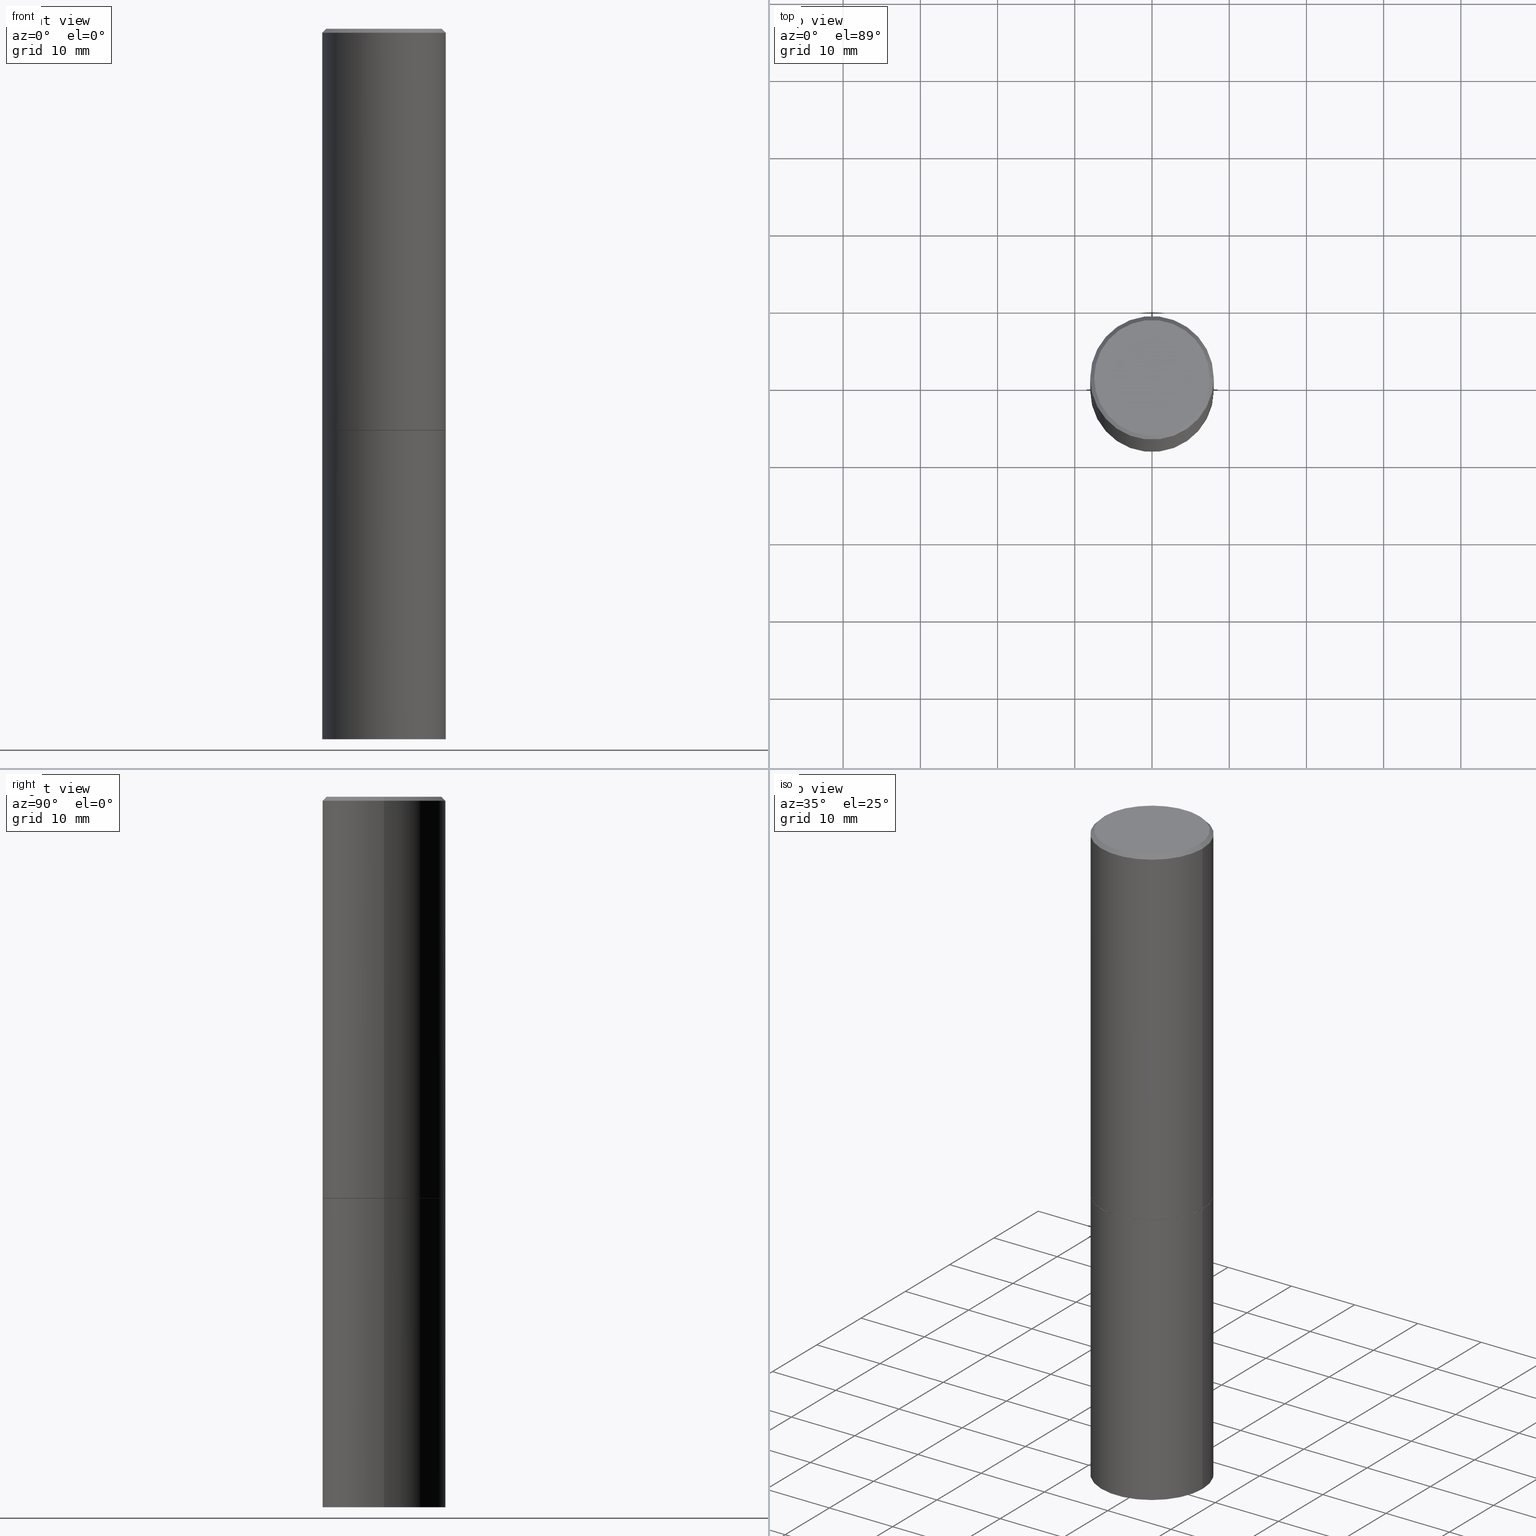
[diagram: canonical four-view strip — front | top / right | iso, engineering-drawing reading convention]
A machine part, canonical four-view strip (front | top / right | iso — engineering-drawing reading convention). The complete STEP part file that produces these views, byte-faithful:
ISO-10303-21;
HEADER;
FILE_DESCRIPTION (( 'STEP AP203' ),
    '1' );
FILE_NAME ('74471.STEP',
    '2024-02-29T11:31:50',
    ( '' ),
    ( '' ),
    'SwSTEP 2.0',
    'SolidWorks 2023',
    '' );
FILE_SCHEMA (( 'CONFIG_CONTROL_DESIGN' ));
ENDSEC;

DATA;
#1 = CALENDAR_DATE ( 2024, 29, 2 ) ;
#2 = ORIENTED_EDGE ( 'NONE', *, *, #180, .F. ) ;
#3 = AXIS2_PLACEMENT_3D ( 'NONE', #177, #235, #37 ) ;
#4 = LOCAL_TIME ( 6, 31, 50.00000000000000000, #281 ) ;
#5 = EDGE_CURVE ( 'NONE', #115, #107, #53, .T. ) ;
#6 = ORIENTED_EDGE ( 'NONE', *, *, #275, .F. ) ;
#7 = PERSON_AND_ORGANIZATION_ROLE ( 'creator' ) ;
#8 = AXIS2_PLACEMENT_3D ( 'NONE', #176, #316, #65 ) ;
#9 =( LENGTH_UNIT ( ) NAMED_UNIT ( * ) SI_UNIT ( $, .METRE. ) );
#10 = CARTESIAN_POINT ( 'NONE',  ( 0.3139500000000000068, -9.340061729539288903E-15, -2.047199999999999243 ) ) ;
#11 = CARTESIAN_POINT ( 'NONE',  ( 0.3149500000000000077, -9.347044692216978073E-15, -2.047199999999999687 ) ) ;
#12 = FACE_OUTER_BOUND ( 'NONE', #21, .T. ) ;
#13 = LOCAL_TIME ( 6, 31, 50.00000000000000000, #16 ) ;
#14 = PRODUCT_DEFINITION ( 'UNKNOWN', '', #203, #205 ) ;
#15 = FACE_OUTER_BOUND ( 'NONE', #45, .T. ) ;
#16 = COORDINATED_UNIVERSAL_TIME_OFFSET ( 5, 0, .BEHIND. ) ;
#17 = ADVANCED_FACE ( 'NONE', ( #297 ), #47, .T. ) ;
#18 = DIRECTION ( 'NONE',  ( 1.000000000000000000, -6.982962677686264344E-15, 0.000000000000000000 ) ) ;
#19 = PLANE ( 'NONE',  #183 ) ;
#20 = AXIS2_PLACEMENT_3D ( 'NONE', #298, #357, #277 ) ;
#21 = EDGE_LOOP ( 'NONE', ( #76, #185, #283, #135 ) ) ;
#22 = DIRECTION ( 'NONE',  ( -2.445468806185136597E-29, 3.491481338843145583E-15, 1.000000000000000000 ) ) ;
#23 = DIRECTION ( 'NONE',  ( 1.000000000000000000, -6.982962677686266711E-15, 4.876176775795936353E-29 ) ) ;
#24 = DIRECTION ( 'NONE',  ( 1.000000000000000000, -6.982962677686266711E-15, 0.000000000000000000 ) ) ;
#25 = AXIS2_PLACEMENT_3D ( 'NONE', #257, #317, #170 ) ;
#26 = EDGE_CURVE ( 'NONE', #213, #107, #346, .T. ) ;
#27 = EDGE_LOOP ( 'NONE', ( #80, #217, #192, #224 ) ) ;
#28 = DIRECTION ( 'NONE',  ( 1.000000000000000000, -6.982962677686267499E-15, 4.876053491004739391E-29 ) ) ;
#29 = ORIENTED_EDGE ( 'NONE', *, *, #299, .T. ) ;
#30 = ORIENTED_EDGE ( 'NONE', *, *, #299, .F. ) ;
#31 = VERTEX_POINT ( 'NONE', #160 ) ;
#32 =( NAMED_UNIT ( * ) PLANE_ANGLE_UNIT ( ) SI_UNIT ( $, .RADIAN. ) );
#33 = EDGE_CURVE ( 'NONE', #198, #199, #300, .T. ) ;
#34 = AXIS2_PLACEMENT_3D ( 'NONE', #273, #22, #24 ) ;
#35 = CARTESIAN_POINT ( 'NONE',  ( 0.000000000000000000, 0.000000000000000000, 0.000000000000000000 ) ) ;
#36 = LINE ( 'NONE', #10, #196 ) ;
#37 = DIRECTION ( 'NONE',  ( 1.000000000000000000, -6.982962677686264344E-15, 0.000000000000000000 ) ) ;
#38 = DIRECTION ( 'NONE',  ( -2.445468806185136597E-29, 3.491481338843145583E-15, 1.000000000000000000 ) ) ;
#39 = APPROVAL_STATUS ( 'not_yet_approved' ) ;
#40 = CARTESIAN_POINT ( 'NONE',  ( -0.3149500000000000077, -1.369195024882416092E-15, -2.046199999999999797 ) ) ;
#41 = AXIS2_PLACEMENT_3D ( 'NONE', #136, #252, #28 ) ;
#42 = AXIS2_PLACEMENT_3D ( 'NONE', #155, #208, #153 ) ;
#43 = ADVANCED_FACE ( 'NONE', ( #108 ), #103, .F. ) ;
#44 = DIRECTION ( 'NONE',  ( 0.000000000000000000, 0.000000000000000000, 1.000000000000000000 ) ) ;
#45 = EDGE_LOOP ( 'NONE', ( #84, #117, #255, #336 ) ) ;
#46 = DIRECTION ( 'NONE',  ( 2.445468806185136597E-29, -3.491481338843145583E-15, -1.000000000000000000 ) ) ;
#47 = CONICAL_SURFACE ( 'NONE', #109, 0.3149499999999997302, 0.7853981633974471688 ) ;
#48 = APPROVAL_STATUS ( 'not_yet_approved' ) ;
#49 = VERTEX_POINT ( 'NONE', #330 ) ;
#50 = CARTESIAN_POINT ( 'NONE',  ( -0.3149500000000000077, 2.237854346276435590E-15, -1.549218606675782676E-29 ) ) ;
#51 = APPLICATION_PROTOCOL_DEFINITION ( 'international standard', 'config_control_design', 1994, #260 ) ;
#52 = ORIENTED_EDGE ( 'NONE', *, *, #92, .F. ) ;
#53 = LINE ( 'NONE', #50, #130 ) ;
#54 = AXIS2_PLACEMENT_3D ( 'NONE', #360, #79, #186 ) ;
#55 = EDGE_LOOP ( 'NONE', ( #226, #111 ) ) ;
#56 = CARTESIAN_POINT ( 'NONE',  ( -0.3149499999999997302, 2.129454468560424601E-15, -0.02000000000000006981 ) ) ;
#57 = COORDINATED_UNIVERSAL_TIME_OFFSET ( 5, 0, .BEHIND. ) ;
#58 = ORIENTED_EDGE ( 'NONE', *, *, #275, .T. ) ;
#59 = ADVANCED_FACE ( 'NONE', ( #279 ), #216, .T. ) ;
#60 = DATE_AND_TIME ( #1, #347 ) ;
#61 = ORIENTED_EDGE ( 'NONE', *, *, #88, .T. ) ;
#62 = PRODUCT_DEFINITION_SHAPE ( 'NONE', 'NONE',  #14 ) ;
#63 = CIRCLE ( 'NONE', #20, 0.3149500000000000077 ) ;
#64 = DATE_TIME_ROLE ( 'creation_date' ) ;
#65 = DIRECTION ( 'NONE',  ( 1.000000000000000000, -6.982962677686263555E-15, 0.000000000000000000 ) ) ;
#66 = ADVANCED_BREP_SHAPE_REPRESENTATION ( '74471', ( #93, #218, #90 ), #99 ) ;
#67 = CARTESIAN_POINT ( 'NONE',  ( 0.3149499999999997302, -2.230543471175005478E-15, -0.02000000000000006981 ) ) ;
#68 =( CONVERSION_BASED_UNIT ( 'INCH', #288 ) LENGTH_UNIT ( ) NAMED_UNIT ( #232 ) );
#69 =( NAMED_UNIT ( * ) SI_UNIT ( $, .STERADIAN. ) SOLID_ANGLE_UNIT ( ) );
#70 = CC_DESIGN_APPROVAL ( #270, ( #356 ) ) ;
#71 = DIRECTION ( 'NONE',  ( -2.445468806185136877E-29, 3.491481338843145188E-15, 1.000000000000000000 ) ) ;
#72 = DIRECTION ( 'NONE',  ( 1.000000000000000000, -6.982962677686269866E-15, 0.000000000000000000 ) ) ;
#73 = EDGE_CURVE ( 'NONE', #339, #198, #63, .T. ) ;
#74 = DIRECTION ( 'NONE',  ( -2.445468806185136597E-29, 3.491481338843145583E-15, 1.000000000000000000 ) ) ;
#75 = DIRECTION ( 'NONE',  ( -2.445468806185136597E-29, 3.491481338843145583E-15, 1.000000000000000000 ) ) ;
#76 = ORIENTED_EDGE ( 'NONE', *, *, #96, .F. ) ;
#77 = AXIS2_PLACEMENT_3D ( 'NONE', #35, #125, #263 ) ;
#78 = CC_DESIGN_PERSON_AND_ORGANIZATION_ASSIGNMENT ( #261, #338, ( #203 ) ) ;
#79 = DIRECTION ( 'NONE',  ( -2.438088387897960049E-29, 3.491481338843145188E-15, 1.000000000000000000 ) ) ;
#80 = ORIENTED_EDGE ( 'NONE', *, *, #179, .T. ) ;
#81 = DIRECTION ( 'NONE',  ( 2.438088387897960049E-29, -3.491481338843145188E-15, -1.000000000000000000 ) ) ;
#82 = ORIENTED_EDGE ( 'NONE', *, *, #73, .F. ) ;
#83 = FACE_OUTER_BOUND ( 'NONE', #27, .T. ) ;
#84 = ORIENTED_EDGE ( 'NONE', *, *, #92, .T. ) ;
#85 = ORIENTED_EDGE ( 'NONE', *, *, #88, .F. ) ;
#86 = SHAPE_DEFINITION_REPRESENTATION ( #62, #66 ) ;
#87 = DATE_AND_TIME ( #227, #363 ) ;
#88 = EDGE_CURVE ( 'NONE', #244, #49, #264, .T. ) ;
#89 = AXIS2_PLACEMENT_3D ( 'NONE', #324, #351, #181 ) ;
#90 = AXIS2_PLACEMENT_3D ( 'NONE', #212, #44, #156 ) ;
#91 = CARTESIAN_POINT ( 'NONE',  ( 0.3149500000000000077, -9.343553210878133488E-15, -2.046199999999999797 ) ) ;
#92 = EDGE_CURVE ( 'NONE', #198, #339, #146, .T. ) ;
#93 = MANIFOLD_SOLID_BREP ( 'Body-Move/Copy2[1]', #322 ) ;
#94 = DIRECTION ( 'NONE',  ( 0.7071067811866199593, -2.468850131083015945E-15, 0.7071067811864750752 ) ) ;
#95 = DIRECTION ( 'NONE',  ( 0.7071067811865466846, -7.319954787623252890E-15, -0.7071067811865483499 ) ) ;
#96 = EDGE_CURVE ( 'NONE', #339, #172, #164, .T. ) ;
#97 = FACE_OUTER_BOUND ( 'NONE', #194, .T. ) ;
#98 = APPLICATION_PROTOCOL_DEFINITION ( 'international standard', 'config_control_design', 1994, #274 ) ;
#99 =( GEOMETRIC_REPRESENTATION_CONTEXT ( 3 ) GLOBAL_UNCERTAINTY_ASSIGNED_CONTEXT ( ( #345 ) ) GLOBAL_UNIT_ASSIGNED_CONTEXT ( ( #68, #32, #69 ) ) REPRESENTATION_CONTEXT ( 'NONE', 'WORKASPACE' ) );
#100 = DIRECTION ( 'NONE',  ( -1.000000000000000000, 6.982962677686266711E-15, 0.000000000000000000 ) ) ;
#101 = AXIS2_PLACEMENT_3D ( 'NONE', #157, #75, #219 ) ;
#102 = EDGE_CURVE ( 'NONE', #172, #199, #225, .T. ) ;
#103 = PLANE ( 'NONE',  #54 ) ;
#104 = ORIENTED_EDGE ( 'NONE', *, *, #174, .F. ) ;
#105 = CARTESIAN_POINT ( 'NONE',  ( 4.890937612370289799E-31, -6.982962677686315028E-17, -0.02000000000000006981 ) ) ;
#106 = APPROVAL ( #39, 'UNSPECIFIED' ) ;
#107 = VERTEX_POINT ( 'NONE', #142 ) ;
#108 = FACE_OUTER_BOUND ( 'NONE', #55, .T. ) ;
#109 = AXIS2_PLACEMENT_3D ( 'NONE', #105, #46, #331 ) ;
#110 = ORGANIZATION ( 'UNSPECIFIED', 'UNSPECIFIED', '' ) ;
#111 = ORIENTED_EDGE ( 'NONE', *, *, #290, .F. ) ;
#112 = EDGE_LOOP ( 'NONE', ( #6, #85, #366, #302 ) ) ;
#113 = CARTESIAN_POINT ( 'NONE',  ( -0.3139500000000000068, -4.917011677960851648E-15, -2.047199999999999243 ) ) ;
#114 = DIRECTION ( 'NONE',  ( -2.445468806185136877E-29, 3.491481338843145188E-15, 1.000000000000000000 ) ) ;
#115 = VERTEX_POINT ( 'NONE', #334 ) ;
#116 = DATE_AND_TIME ( #254, #4 ) ;
#117 = ORIENTED_EDGE ( 'NONE', *, *, #96, .T. ) ;
#118 = AXIS2_PLACEMENT_3D ( 'NONE', #182, #354, #100 ) ;
#119 = COORDINATED_UNIVERSAL_TIME_OFFSET ( 5, 0, .BEHIND. ) ;
#120 = PERSON_AND_ORGANIZATION_ROLE ( 'classification_officer' ) ;
#121 = ADVANCED_FACE ( 'NONE', ( #191 ), #19, .F. ) ;
#122 = CLOSED_SHELL ( 'NONE', ( #140, #240, #320, #17, #350, #127, #43, #326 ) ) ;
#123 = DIRECTION ( 'NONE',  ( -2.445468806185136597E-29, 3.491481338843145583E-15, 1.000000000000000000 ) ) ;
#124 = ADVANCED_FACE ( 'NONE', ( #138 ), #251, .T. ) ;
#125 = DIRECTION ( 'NONE',  ( -2.445468806185136597E-29, 3.491481338843145583E-15, 1.000000000000000000 ) ) ;
#126 = DIRECTION ( 'NONE',  ( -1.000000000000000000, 6.982962677686265922E-15, -4.876176775795935793E-29 ) ) ;
#127 = ADVANCED_FACE ( 'NONE', ( #243 ), #361, .T. ) ;
#128 = PLANE ( 'NONE',  #131 ) ;
#129 = PERSON_AND_ORGANIZATION ( #329, #110 ) ;
#130 = VECTOR ( 'NONE', #114, 39.37007874015748143 ) ;
#131 = AXIS2_PLACEMENT_3D ( 'NONE', #319, #349, #126 ) ;
#132 = DIRECTION ( 'NONE',  ( -1.000000000000000000, 6.982962677686265922E-15, -4.876176775795935793E-29 ) ) ;
#133 = ORIENTED_EDGE ( 'NONE', *, *, #242, .T. ) ;
#134 = CC_DESIGN_PERSON_AND_ORGANIZATION_ASSIGNMENT ( #325, #352, ( #318 ) ) ;
#135 = ORIENTED_EDGE ( 'NONE', *, *, #102, .F. ) ;
#136 = CARTESIAN_POINT ( 'NONE',  ( -2.087702828670439639E-46, 2.980686340760894400E-32, 8.537024980200822558E-18 ) ) ;
#137 = AXIS2_PLACEMENT_3D ( 'NONE', #267, #206, #265 ) ;
#138 = FACE_OUTER_BOUND ( 'NONE', #147, .T. ) ;
#139 = CC_DESIGN_APPROVAL ( #106, ( #14 ) ) ;
#140 = ADVANCED_FACE ( 'NONE', ( #286 ), #163, .T. ) ;
#141 = LINE ( 'NONE', #113, #294 ) ;
#142 = CARTESIAN_POINT ( 'NONE',  ( -0.3149500000000000077, -7.659098656808343322E-15, -2.047199999999999687 ) ) ;
#143 = DATE_AND_TIME ( #204, #315 ) ;
#144 = EDGE_LOOP ( 'NONE', ( #61, #29 ) ) ;
#145 = ORIENTED_EDGE ( 'NONE', *, *, #312, .F. ) ;
#146 = CIRCLE ( 'NONE', #101, 0.3149500000000000077 ) ;
#147 = EDGE_LOOP ( 'NONE', ( #221, #2 ) ) ;
#148 = CC_DESIGN_PERSON_AND_ORGANIZATION_ASSIGNMENT ( #184, #296, ( #14 ) ) ;
#149 = APPROVAL_ROLE ( '' ) ;
#150 = APPROVAL_PERSON_ORGANIZATION ( #129, #106, #269 ) ;
#151 = CARTESIAN_POINT ( 'NONE',  ( 5.006363740022211120E-29, -7.147760596879686624E-15, -2.047199999999999687 ) ) ;
#152 = CARTESIAN_POINT ( 'NONE',  ( -2.087702828670439639E-46, 2.980686340760894400E-32, 8.537024980200822558E-18 ) ) ;
#153 = DIRECTION ( 'NONE',  ( 1.000000000000000000, -6.982962677686265922E-15, 4.876176775795935232E-29 ) ) ;
#154 = CIRCLE ( 'NONE', #306, 0.2949499999999997124 ) ;
#155 = CARTESIAN_POINT ( 'NONE',  ( 0.000000000000000000, 0.000000000000000000, 0.000000000000000000 ) ) ;
#156 = DIRECTION ( 'NONE',  ( 1.000000000000000000, 0.000000000000000000, 0.000000000000000000 ) ) ;
#157 = CARTESIAN_POINT ( 'NONE',  ( 5.003918271216025517E-29, -7.144269115540843617E-15, -2.046199999999999797 ) ) ;
#158 = EDGE_CURVE ( 'NONE', #31, #259, #202, .T. ) ;
#159 = CIRCLE ( 'NONE', #250, 0.3149500000000000077 ) ;
#160 = CARTESIAN_POINT ( 'NONE',  ( 0.3139500000000000068, -9.340061729539288903E-15, -2.047199999999999243 ) ) ;
#161 = DIRECTION ( 'NONE',  ( -2.445468806185136877E-29, 3.491481338843145188E-15, 1.000000000000000000 ) ) ;
#162 = CARTESIAN_POINT ( 'NONE',  ( 0.3149499999999998967, -2.199284095337288688E-15, 1.535751875536929289E-29 ) ) ;
#163 = CONICAL_SURFACE ( 'NONE', #3, 0.3139500000000000068, 0.7853981633975507526 ) ;
#164 = LINE ( 'NONE', #248, #327 ) ;
#165 = CC_DESIGN_DATE_AND_TIME_ASSIGNMENT ( #60, #171, ( #356 ) ) ;
#166 = ORIENTED_EDGE ( 'NONE', *, *, #26, .T. ) ;
#167 = CYLINDRICAL_SURFACE ( 'NONE', #241, 0.3149500000000000077 ) ;
#168 = APPROVAL_STATUS ( 'not_yet_approved' ) ;
#169 = ORIENTED_EDGE ( 'NONE', *, *, #312, .T. ) ;
#170 = DIRECTION ( 'NONE',  ( 1.000000000000000000, -6.982962677686264344E-15, 0.000000000000000000 ) ) ;
#171 = DATE_TIME_ROLE ( 'classification_date' ) ;
#172 = VERTEX_POINT ( 'NONE', #173 ) ;
#173 = CARTESIAN_POINT ( 'NONE',  ( -0.3149499999999997302, 2.129454468560424601E-15, -0.02000000000000006981 ) ) ;
#174 = EDGE_CURVE ( 'NONE', #244, #172, #201, .T. ) ;
#175 = VECTOR ( 'NONE', #95, 39.37007874015748143 ) ;
#176 = CARTESIAN_POINT ( 'NONE',  ( 8.857488016002564476E-29, -1.264614540928987199E-14, -3.621999999999999886 ) ) ;
#177 = CARTESIAN_POINT ( 'NONE',  ( 5.006363740022209999E-29, -7.147760596879685046E-15, -2.047199999999999243 ) ) ;
#178 = CARTESIAN_POINT ( 'NONE',  ( 8.857488016002564476E-29, -1.264614540928987199E-14, -3.621999999999999886 ) ) ;
#179 = EDGE_CURVE ( 'NONE', #247, #115, #237, .T. ) ;
#180 = EDGE_CURVE ( 'NONE', #115, #247, #207, .T. ) ;
#181 = DIRECTION ( 'NONE',  ( 1.000000000000000000, -6.982962677686264344E-15, 0.000000000000000000 ) ) ;
#182 = CARTESIAN_POINT ( 'NONE',  ( 4.890937612370289799E-31, -6.982962677686315028E-17, -0.02000000000000006981 ) ) ;
#183 = AXIS2_PLACEMENT_3D ( 'NONE', #301, #220, #132 ) ;
#184 = PERSON_AND_ORGANIZATION ( #329, #110 ) ;
#185 = ORIENTED_EDGE ( 'NONE', *, *, #73, .T. ) ;
#186 = DIRECTION ( 'NONE',  ( 1.000000000000000000, -6.982962677686265922E-15, 4.876176775795935793E-29 ) ) ;
#187 = PERSON_AND_ORGANIZATION ( #329, #110 ) ;
#188 = VECTOR ( 'NONE', #161, 39.37007874015748143 ) ;
#189 = ORIENTED_EDGE ( 'NONE', *, *, #200, .F. ) ;
#190 = COORDINATED_UNIVERSAL_TIME_OFFSET ( 5, 0, .BEHIND. ) ;
#191 = FACE_OUTER_BOUND ( 'NONE', #282, .T. ) ;
#192 = ORIENTED_EDGE ( 'NONE', *, *, #26, .F. ) ;
#193 = DIRECTION ( 'NONE',  ( -1.000000000000000000, 6.982962677686265922E-15, -4.876176775795935793E-29 ) ) ;
#194 = EDGE_LOOP ( 'NONE', ( #30, #58, #133, #104 ) ) ;
#195 = CARTESIAN_POINT ( 'NONE',  ( 0.000000000000000000, 0.000000000000000000, 0.000000000000000000 ) ) ;
#196 = VECTOR ( 'NONE', #94, 39.37007874015748143 ) ;
#197 = SECURITY_CLASSIFICATION_LEVEL ( 'unclassified' ) ;
#198 = VERTEX_POINT ( 'NONE', #91 ) ;
#199 = VERTEX_POINT ( 'NONE', #67 ) ;
#200 = EDGE_CURVE ( 'NONE', #259, #339, #141, .T. ) ;
#201 = LINE ( 'NONE', #56, #314 ) ;
#202 = CIRCLE ( 'NONE', #333, 0.3139500000000000068 ) ;
#203 = PRODUCT_DEFINITION_FORMATION_WITH_SPECIFIED_SOURCE ( 'ANY', '', #318, .NOT_KNOWN. ) ;
#204 = CALENDAR_DATE ( 2024, 29, 2 ) ;
#205 = DESIGN_CONTEXT ( 'detailed design', #274, 'design' ) ;
#206 = DIRECTION ( 'NONE',  ( -2.445468806185136597E-29, 3.491481338843145583E-15, 1.000000000000000000 ) ) ;
#207 = CIRCLE ( 'NONE', #256, 0.3149500000000000077 ) ;
#208 = DIRECTION ( 'NONE',  ( -2.445468806185136597E-29, 3.491481338843145583E-15, 1.000000000000000000 ) ) ;
#209 = ADVANCED_FACE ( 'NONE', ( #83 ), #167, .T. ) ;
#210 = LINE ( 'NONE', #266, #249 ) ;
#211 = CARTESIAN_POINT ( 'NONE',  ( 0.3149500000000000077, -1.484542950462716186E-14, -3.621999999999999886 ) ) ;
#212 = CARTESIAN_POINT ( 'NONE',  ( 0.000000000000000000, 0.000000000000000000, 0.000000000000000000 ) ) ;
#213 = VERTEX_POINT ( 'NONE', #11 ) ;
#214 = MECHANICAL_CONTEXT ( 'NONE', #260, 'mechanical' ) ;
#215 = APPROVAL ( #48, 'UNSPECIFIED' ) ;
#216 = CYLINDRICAL_SURFACE ( 'NONE', #362, 0.3149500000000000077 ) ;
#217 = ORIENTED_EDGE ( 'NONE', *, *, #5, .T. ) ;
#218 = MANIFOLD_SOLID_BREP ( 'Body-Move/Copy2[2]', #122 ) ;
#219 = DIRECTION ( 'NONE',  ( 1.000000000000000000, -6.982962677686266711E-15, 0.000000000000000000 ) ) ;
#220 = DIRECTION ( 'NONE',  ( 2.438088387897960049E-29, -3.491481338843145188E-15, -1.000000000000000000 ) ) ;
#221 = ORIENTED_EDGE ( 'NONE', *, *, #179, .F. ) ;
#222 = CARTESIAN_POINT ( 'NONE',  ( 5.006363740022211120E-29, -7.147760596879686624E-15, -2.047199999999999687 ) ) ;
#223 = APPROVAL_DATE_TIME ( #143, #215 ) ;
#224 = ORIENTED_EDGE ( 'NONE', *, *, #230, .F. ) ;
#225 = CIRCLE ( 'NONE', #34, 0.3149499999999997302 ) ;
#226 = ORIENTED_EDGE ( 'NONE', *, *, #158, .F. ) ;
#227 = CALENDAR_DATE ( 2024, 29, 2 ) ;
#228 = APPROVAL_ROLE ( '' ) ;
#229 = PERSON_AND_ORGANIZATION ( #329, #110 ) ;
#230 = EDGE_CURVE ( 'NONE', #247, #213, #210, .T. ) ;
#231 = DIRECTION ( 'NONE',  ( 1.000000000000000000, -6.982962677686263555E-15, 0.000000000000000000 ) ) ;
#232 = DIMENSIONAL_EXPONENTS ( 1.000000000000000000, 0.000000000000000000, 0.000000000000000000, 0.000000000000000000, 0.000000000000000000, 0.000000000000000000, 0.000000000000000000 ) ;
#233 = CC_DESIGN_PERSON_AND_ORGANIZATION_ASSIGNMENT ( #308, #120, ( #356 ) ) ;
#234 = FACE_OUTER_BOUND ( 'NONE', #144, .T. ) ;
#235 = DIRECTION ( 'NONE',  ( -2.445468806185136597E-29, 3.491481338843145583E-15, 1.000000000000000000 ) ) ;
#236 = CARTESIAN_POINT ( 'NONE',  ( -0.2949499999999997124, 2.094539655171993740E-15, 8.537024980186296424E-18 ) ) ;
#237 = CIRCLE ( 'NONE', #8, 0.3149500000000000077 ) ;
#238 = CYLINDRICAL_SURFACE ( 'NONE', #42, 0.3149499999999998967 ) ;
#239 = CALENDAR_DATE ( 2024, 29, 2 ) ;
#240 = ADVANCED_FACE ( 'NONE', ( #15 ), #292, .T. ) ;
#241 = AXIS2_PLACEMENT_3D ( 'NONE', #195, #307, #348 ) ;
#242 = EDGE_CURVE ( 'NONE', #199, #172, #285, .T. ) ;
#243 = FACE_OUTER_BOUND ( 'NONE', #311, .T. ) ;
#244 = VERTEX_POINT ( 'NONE', #236 ) ;
#245 = CARTESIAN_POINT ( 'NONE',  ( 5.006363740022209999E-29, -7.147760596879685046E-15, -2.047199999999999243 ) ) ;
#246 = DIRECTION ( 'NONE',  ( 1.000000000000000000, -6.982962677686269866E-15, 0.000000000000000000 ) ) ;
#247 = VERTEX_POINT ( 'NONE', #211 ) ;
#248 = CARTESIAN_POINT ( 'NONE',  ( -0.3149499999999998967, 2.237854346276434801E-15, -1.549218606675782116E-29 ) ) ;
#249 = VECTOR ( 'NONE', #71, 39.37007874015748143 ) ;
#250 = AXIS2_PLACEMENT_3D ( 'NONE', #151, #123, #72 ) ;
#251 = PLANE ( 'NONE',  #353 ) ;
#252 = DIRECTION ( 'NONE',  ( -2.445468806185136597E-29, 3.491481338843145583E-15, 1.000000000000000000 ) ) ;
#253 = ORIENTED_EDGE ( 'NONE', *, *, #304, .F. ) ;
#254 = CALENDAR_DATE ( 2024, 29, 2 ) ;
#255 = ORIENTED_EDGE ( 'NONE', *, *, #242, .F. ) ;
#256 = AXIS2_PLACEMENT_3D ( 'NONE', #178, #287, #231 ) ;
#257 = CARTESIAN_POINT ( 'NONE',  ( 5.006363740022209999E-29, -7.147760596879685046E-15, -2.047199999999999243 ) ) ;
#258 = APPROVAL_PERSON_ORGANIZATION ( #187, #215, #149 ) ;
#259 = VERTEX_POINT ( 'NONE', #293 ) ;
#260 = APPLICATION_CONTEXT ( 'configuration controlled 3d designs of mechanical parts and assemblies' ) ;
#261 = PERSON_AND_ORGANIZATION ( #329, #110 ) ;
#262 = CC_DESIGN_DATE_AND_TIME_ASSIGNMENT ( #87, #64, ( #14 ) ) ;
#263 = DIRECTION ( 'NONE',  ( 1.000000000000000000, -6.982962677686265922E-15, 4.876176775795935232E-29 ) ) ;
#264 = CIRCLE ( 'NONE', #41, 0.2949499999999997124 ) ;
#265 = DIRECTION ( 'NONE',  ( 1.000000000000000000, -6.982962677686266711E-15, 0.000000000000000000 ) ) ;
#266 = CARTESIAN_POINT ( 'NONE',  ( 0.3149500000000000077, -2.199284095337289871E-15, 1.535751875536930130E-29 ) ) ;
#267 = CARTESIAN_POINT ( 'NONE',  ( 4.890937612370289799E-31, -6.982962677686315028E-17, -0.02000000000000006981 ) ) ;
#268 = CIRCLE ( 'NONE', #89, 0.3139500000000000068 ) ;
#269 = APPROVAL_ROLE ( '' ) ;
#270 = APPROVAL ( #168, 'UNSPECIFIED' ) ;
#271 = DIRECTION ( 'NONE',  ( -2.445468806185136597E-29, 3.491481338843145583E-15, 1.000000000000000000 ) ) ;
#272 = DIRECTION ( 'NONE',  ( -2.445468806185136877E-29, 3.491481338843145188E-15, 1.000000000000000000 ) ) ;
#273 = CARTESIAN_POINT ( 'NONE',  ( 4.890937612370289799E-31, -6.982962677686315028E-17, -0.02000000000000006981 ) ) ;
#274 = APPLICATION_CONTEXT ( 'configuration controlled 3d designs of mechanical parts and assemblies' ) ;
#275 = EDGE_CURVE ( 'NONE', #49, #199, #289, .T. ) ;
#276 = DIRECTION ( 'NONE',  ( -2.445468806185136597E-29, 3.491481338843145583E-15, 1.000000000000000000 ) ) ;
#277 = DIRECTION ( 'NONE',  ( 1.000000000000000000, -6.982962677686266711E-15, 0.000000000000000000 ) ) ;
#278 = CC_DESIGN_SECURITY_CLASSIFICATION ( #356, ( #203 ) ) ;
#279 = FACE_OUTER_BOUND ( 'NONE', #342, .T. ) ;
#280 = ORIENTED_EDGE ( 'NONE', *, *, #230, .T. ) ;
#281 = COORDINATED_UNIVERSAL_TIME_OFFSET ( 5, 0, .BEHIND. ) ;
#282 = EDGE_LOOP ( 'NONE', ( #166, #169 ) ) ;
#283 = ORIENTED_EDGE ( 'NONE', *, *, #33, .T. ) ;
#284 = PRODUCT_RELATED_PRODUCT_CATEGORY ( 'detail', '', ( #318 ) ) ;
#285 = CIRCLE ( 'NONE', #137, 0.3149499999999997302 ) ;
#286 = FACE_OUTER_BOUND ( 'NONE', #359, .T. ) ;
#287 = DIRECTION ( 'NONE',  ( -2.445468806185136597E-29, 3.491481338843145583E-15, 1.000000000000000000 ) ) ;
#288 = LENGTH_MEASURE_WITH_UNIT ( LENGTH_MEASURE( 0.02539999999999999897 ), #9 );
#289 = LINE ( 'NONE', #321, #175 ) ;
#290 = EDGE_CURVE ( 'NONE', #259, #31, #268, .T. ) ;
#291 = DIRECTION ( 'NONE',  ( 1.000000000000000000, -6.982962677686267499E-15, 4.876053491004739391E-29 ) ) ;
#292 = CYLINDRICAL_SURFACE ( 'NONE', #77, 0.3149499999999998967 ) ;
#293 = CARTESIAN_POINT ( 'NONE',  ( -0.3139500000000000068, -4.911713223612629246E-15, -2.047199999999999243 ) ) ;
#294 = VECTOR ( 'NONE', #337, 39.37007874015748143 ) ;
#295 = CONICAL_SURFACE ( 'NONE', #118, 0.3149499999999997302, 0.7853981633974471688 ) ;
#296 = PERSON_AND_ORGANIZATION_ROLE ( 'creator' ) ;
#297 = FACE_OUTER_BOUND ( 'NONE', #112, .T. ) ;
#298 = CARTESIAN_POINT ( 'NONE',  ( 5.003918271216025517E-29, -7.144269115540843617E-15, -2.046199999999999797 ) ) ;
#299 = EDGE_CURVE ( 'NONE', #49, #244, #154, .T. ) ;
#300 = LINE ( 'NONE', #162, #188 ) ;
#301 = CARTESIAN_POINT ( 'NONE',  ( 2.199284095337339175E-15, 0.3149499999999928468, -2.047200000000001019 ) ) ;
#302 = ORIENTED_EDGE ( 'NONE', *, *, #102, .T. ) ;
#303 = CARTESIAN_POINT ( 'NONE',  ( 0.000000000000000000, 0.000000000000000000, 0.000000000000000000 ) ) ;
#304 = EDGE_CURVE ( 'NONE', #31, #198, #36, .T. ) ;
#305 = ORIENTED_EDGE ( 'NONE', *, *, #290, .T. ) ;
#306 = AXIS2_PLACEMENT_3D ( 'NONE', #152, #38, #291 ) ;
#307 = DIRECTION ( 'NONE',  ( -2.445468806185136597E-29, 3.491481338843145583E-15, 1.000000000000000000 ) ) ;
#308 = PERSON_AND_ORGANIZATION ( #329, #110 ) ;
#309 = ORIENTED_EDGE ( 'NONE', *, *, #5, .F. ) ;
#310 = PERSON_AND_ORGANIZATION ( #329, #110 ) ;
#311 = EDGE_LOOP ( 'NONE', ( #189, #305, #332, #82 ) ) ;
#312 = EDGE_CURVE ( 'NONE', #107, #213, #159, .T. ) ;
#313 = DIRECTION ( 'NONE',  ( -0.7071067811865466846, 2.468850131082247989E-15, -0.7071067811865483499 ) ) ;
#314 = VECTOR ( 'NONE', #313, 39.37007874015748143 ) ;
#315 = LOCAL_TIME ( 6, 31, 50.00000000000000000, #57 ) ;
#316 = DIRECTION ( 'NONE',  ( -2.445468806185136597E-29, 3.491481338843145583E-15, 1.000000000000000000 ) ) ;
#317 = DIRECTION ( 'NONE',  ( -2.445468806185136597E-29, 3.491481338843145583E-15, 1.000000000000000000 ) ) ;
#318 = PRODUCT ( '74471', '74471', '', ( #214 ) ) ;
#319 = CARTESIAN_POINT ( 'NONE',  ( 2.059624841783562091E-15, 0.2949499999999997124, -1.025543908401684366E-15 ) ) ;
#320 = ADVANCED_FACE ( 'NONE', ( #97 ), #295, .T. ) ;
#321 = CARTESIAN_POINT ( 'NONE',  ( 0.3149499999999997302, -2.230543471175005478E-15, -0.02000000000000006981 ) ) ;
#322 = CLOSED_SHELL ( 'NONE', ( #209, #124, #121, #59 ) ) ;
#323 = CC_DESIGN_APPROVAL ( #215, ( #203 ) ) ;
#324 = CARTESIAN_POINT ( 'NONE',  ( 5.006363740022209999E-29, -7.147760596879685046E-15, -2.047199999999999243 ) ) ;
#325 = PERSON_AND_ORGANIZATION ( #329, #110 ) ;
#326 = ADVANCED_FACE ( 'NONE', ( #234 ), #128, .F. ) ;
#327 = VECTOR ( 'NONE', #272, 39.37007874015748143 ) ;
#328 = APPROVAL_DATE_TIME ( #355, #106 ) ;
#329 = PERSON ( 'UNSPECIFIED', 'UNSPECIFIED', 'UNSPECIFIED', ('UNSPECIFIED'), ('UNSPECIFIED'), ('UNSPECIFIED') ) ;
#330 = CARTESIAN_POINT ( 'NONE',  ( 0.2949499999999997124, -2.127023677808858103E-15, 8.537024980215462707E-18 ) ) ;
#331 = DIRECTION ( 'NONE',  ( -1.000000000000000000, 6.982962677686266711E-15, 0.000000000000000000 ) ) ;
#332 = ORIENTED_EDGE ( 'NONE', *, *, #304, .T. ) ;
#333 = AXIS2_PLACEMENT_3D ( 'NONE', #245, #271, #18 ) ;
#334 = CARTESIAN_POINT ( 'NONE',  ( -0.3149500000000000077, -7.659098656808343322E-15, -3.621999999999999886 ) ) ;
#335 = CARTESIAN_POINT ( 'NONE',  ( 2.199284095337378223E-15, 0.3149499999999873512, -3.622000000000000774 ) ) ;
#336 = ORIENTED_EDGE ( 'NONE', *, *, #33, .F. ) ;
#337 = DIRECTION ( 'NONE',  ( -0.7071067811866199593, 7.493145998870616062E-15, 0.7071067811864750752 ) ) ;
#338 = PERSON_AND_ORGANIZATION_ROLE ( 'design_supplier' ) ;
#339 = VERTEX_POINT ( 'NONE', #40 ) ;
#340 = AXIS2_PLACEMENT_3D ( 'NONE', #222, #74, #246 ) ;
#341 = APPROVAL_PERSON_ORGANIZATION ( #229, #270, #228 ) ;
#342 = EDGE_LOOP ( 'NONE', ( #309, #365, #280, #145 ) ) ;
#343 = APPROVAL_DATE_TIME ( #116, #270 ) ;
#344 = CC_DESIGN_PERSON_AND_ORGANIZATION_ASSIGNMENT ( #310, #7, ( #203 ) ) ;
#345 = UNCERTAINTY_MEASURE_WITH_UNIT (LENGTH_MEASURE( 1.000000000000000082E-05 ), #68, 'distance_accuracy_value', 'NONE');
#346 = CIRCLE ( 'NONE', #340, 0.3149500000000000077 ) ;
#347 = LOCAL_TIME ( 6, 31, 50.00000000000000000, #119 ) ;
#348 = DIRECTION ( 'NONE',  ( 1.000000000000000000, -6.982962677686266711E-15, 4.876176775795936353E-29 ) ) ;
#349 = DIRECTION ( 'NONE',  ( 2.438088387897960049E-29, -3.491481338843145188E-15, -1.000000000000000000 ) ) ;
#350 = ADVANCED_FACE ( 'NONE', ( #12 ), #238, .T. ) ;
#351 = DIRECTION ( 'NONE',  ( -2.445468806185136597E-29, 3.491481338843145583E-15, 1.000000000000000000 ) ) ;
#352 = PERSON_AND_ORGANIZATION_ROLE ( 'design_owner' ) ;
#353 = AXIS2_PLACEMENT_3D ( 'NONE', #335, #81, #193 ) ;
#354 = DIRECTION ( 'NONE',  ( 2.445468806185136597E-29, -3.491481338843145583E-15, -1.000000000000000000 ) ) ;
#355 = DATE_AND_TIME ( #239, #13 ) ;
#356 = SECURITY_CLASSIFICATION ( '', '', #197 ) ;
#357 = DIRECTION ( 'NONE',  ( -2.445468806185136597E-29, 3.491481338843145583E-15, 1.000000000000000000 ) ) ;
#358 = ORIENTED_EDGE ( 'NONE', *, *, #200, .T. ) ;
#359 = EDGE_LOOP ( 'NONE', ( #364, #358, #52, #253 ) ) ;
#360 = CARTESIAN_POINT ( 'NONE',  ( 5.006363740022211680E-29, -7.147760596879688202E-15, -2.047200000000000131 ) ) ;
#361 = CONICAL_SURFACE ( 'NONE', #25, 0.3139500000000000068, 0.7853981633975507526 ) ;
#362 = AXIS2_PLACEMENT_3D ( 'NONE', #303, #276, #23 ) ;
#363 = LOCAL_TIME ( 6, 31, 50.00000000000000000, #190 ) ;
#364 = ORIENTED_EDGE ( 'NONE', *, *, #158, .T. ) ;
#365 = ORIENTED_EDGE ( 'NONE', *, *, #180, .T. ) ;
#366 = ORIENTED_EDGE ( 'NONE', *, *, #174, .T. ) ;
ENDSEC;
END-ISO-10303-21;
